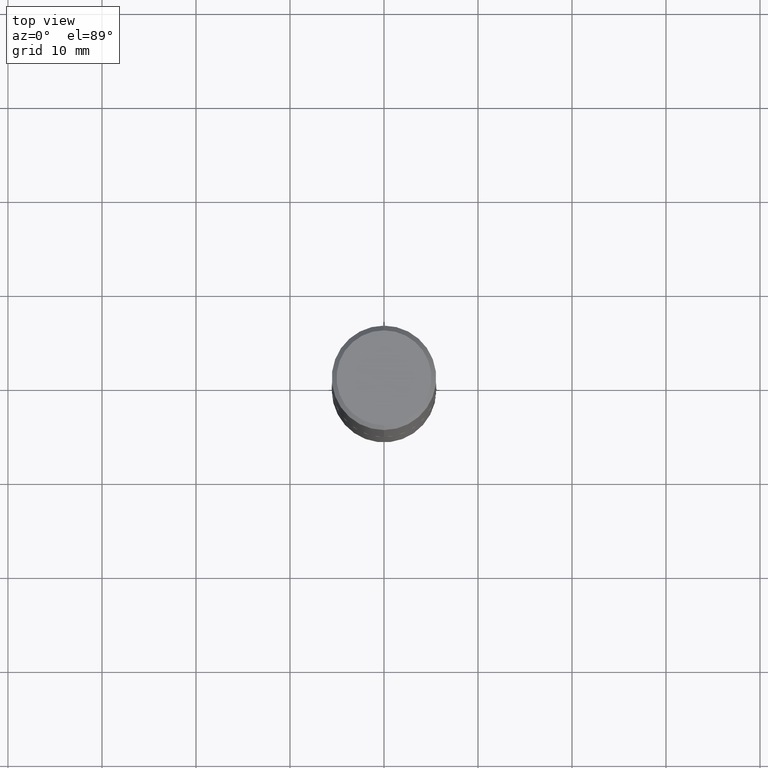
[diagram: clean part render]
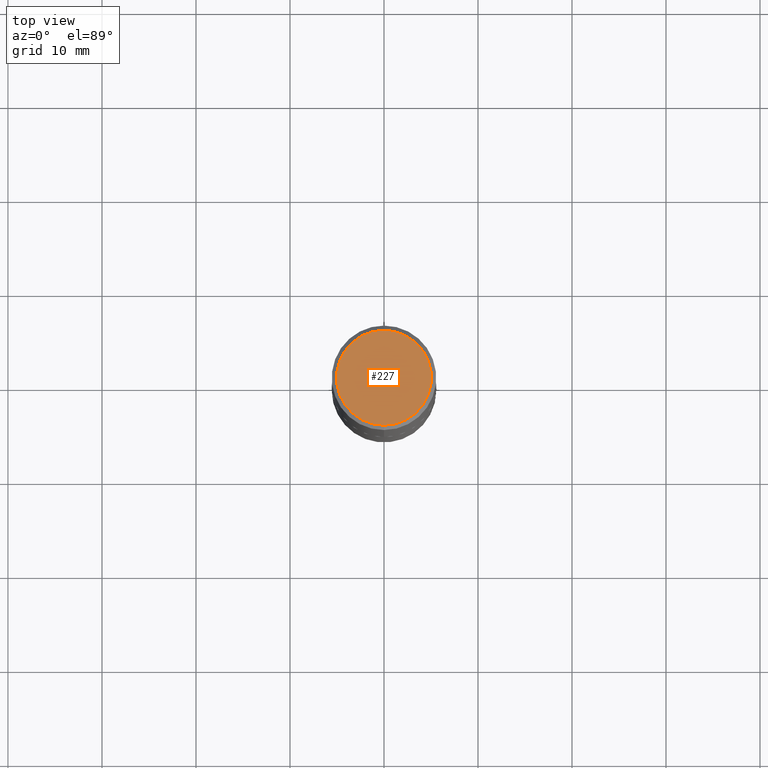
[diagram: same view with one face highlighted and labeled with its STEP entity id]
A machine part, top view. The second image highlights one B-rep face of the part: STEP entity #227.
In plain terms, the highlighted planar face has unit normal (0, -0, -1).
Its self-contained STEP definition (entity closure, byte-faithful):
#10 = VERTEX_POINT ( 'NONE', #69 ) ;
#69 = CARTESIAN_POINT ( 'NONE',  ( -1.432128957034806803E-15, -0.1987500000000000100, 6.429457658532835252E-16 ) ) ;
#81 = CIRCLE ( 'NONE', #152, 0.1987500000000000100 ) ;
#108 = CARTESIAN_POINT ( 'NONE',  ( 1.249524178112448832E-45, -1.784595273110905928E-31, -5.110415006149825816E-17 ) ) ;
#120 = EDGE_CURVE ( 'NONE', #10, #193, #81, .T. ) ;
#121 = AXIS2_PLACEMENT_3D ( 'NONE', #242, #273, #345 ) ;
#152 = AXIS2_PLACEMENT_3D ( 'NONE', #306, #204, #281 ) ;
#193 = VERTEX_POINT ( 'NONE', #276 ) ;
#202 = FACE_OUTER_BOUND ( 'NONE', #363, .T. ) ;
#204 = DIRECTION ( 'NONE',  ( -2.445054220858351343E-29, 3.492075048627833097E-15, 1.000000000000000000 ) ) ;
#227 = ADVANCED_FACE ( 'NONE', ( #202 ), #337, .F. ) ;
#242 = CARTESIAN_POINT ( 'NONE',  ( 1.387863832190145233E-15, 0.1987500000000000100, -7.196019909455309833E-16 ) ) ;
#258 = CIRCLE ( 'NONE', #272, 0.1987500000000000100 ) ;
#272 = AXIS2_PLACEMENT_3D ( 'NONE', #108, #368, #338 ) ;
#273 = DIRECTION ( 'NONE',  ( 2.445054220858351343E-29, -3.492075048627833097E-15, -1.000000000000000000 ) ) ;
#276 = CARTESIAN_POINT ( 'NONE',  ( 1.457693458967008136E-15, 0.1987500000000000100, -7.451540659762801031E-16 ) ) ;
#281 = DIRECTION ( 'NONE',  ( -6.982962677686265133E-15, -1.000000000000000000, 3.492075048627833097E-15 ) ) ;
#306 = CARTESIAN_POINT ( 'NONE',  ( 1.249524178112448832E-45, -1.784595273110905928E-31, -5.110415006149825816E-17 ) ) ;
#332 = ORIENTED_EDGE ( 'NONE', *, *, #120, .T. ) ;
#337 = PLANE ( 'NONE',  #121 ) ;
#338 = DIRECTION ( 'NONE',  ( -6.982962677686265133E-15, -1.000000000000000000, 3.492075048627833097E-15 ) ) ;
#345 = DIRECTION ( 'NONE',  ( 6.982962677686265922E-15, 1.000000000000000000, -3.492075048627833097E-15 ) ) ;
#357 = ORIENTED_EDGE ( 'NONE', *, *, #375, .T. ) ;
#363 = EDGE_LOOP ( 'NONE', ( #357, #332 ) ) ;
#368 = DIRECTION ( 'NONE',  ( -2.445054220858351343E-29, 3.492075048627833097E-15, 1.000000000000000000 ) ) ;
#375 = EDGE_CURVE ( 'NONE', #193, #10, #258, .T. ) ;